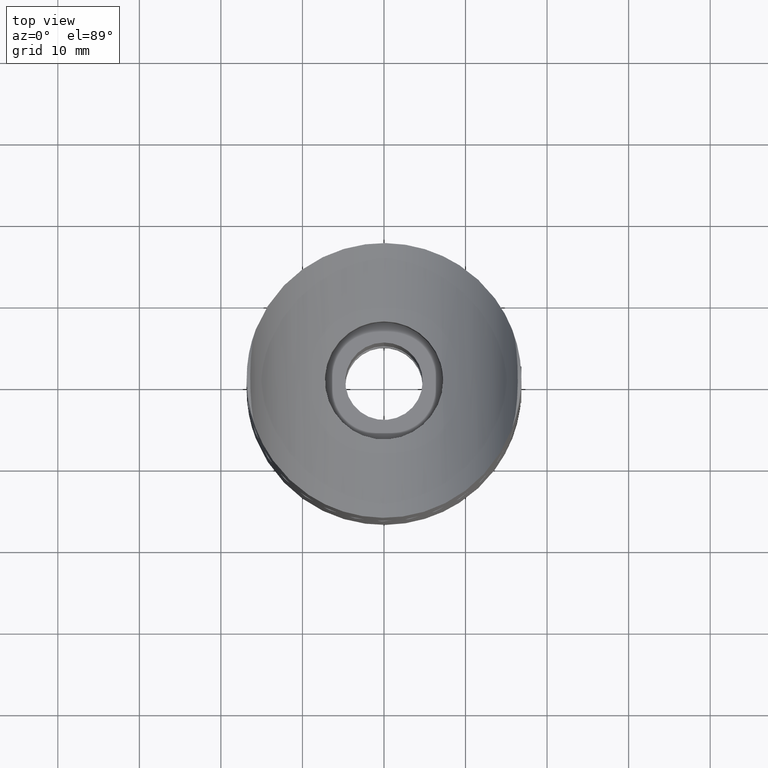
[diagram: clean part render]
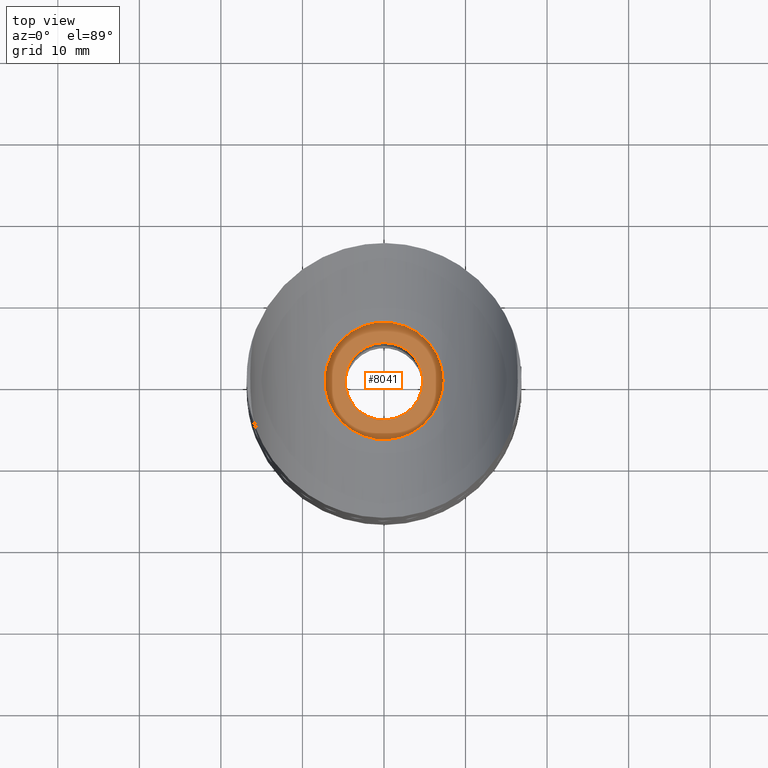
[diagram: same view with one face highlighted and labeled with its STEP entity id]
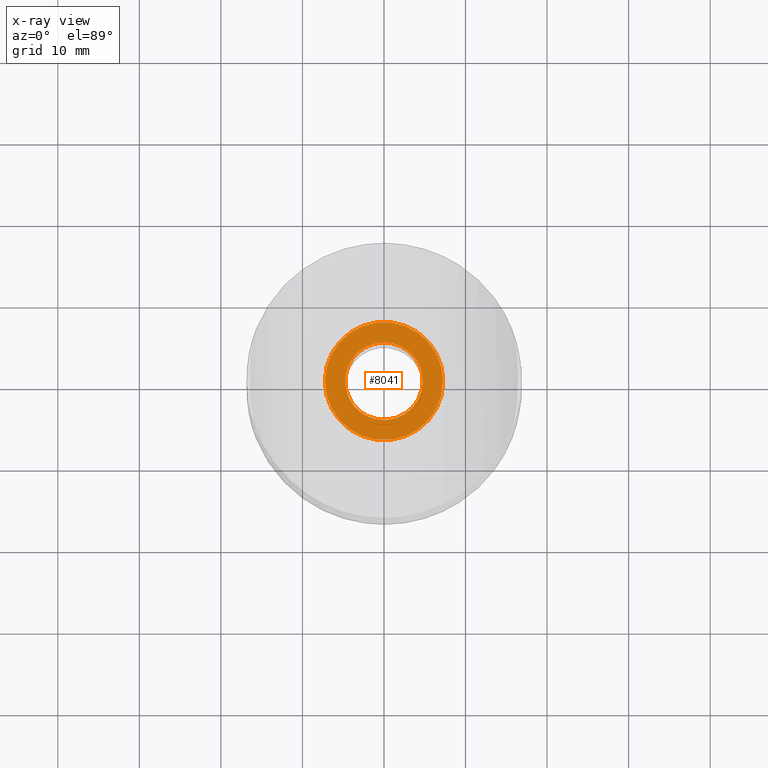
[diagram: x-ray of the same camera — body ghosted, the highlighted face saturated]
A machine part, top view. The second image highlights one B-rep face of the part: STEP entity #8041.
The next image is the same camera in x-ray: the body ghosted, the highlighted face saturated — about 0% of this face is hidden behind the body in this view.
In plain terms, the highlighted planar face has unit normal (0, 0, 1).
Its self-contained STEP definition (entity closure, byte-faithful):
#1192 = CARTESIAN_POINT ( 'NONE',  ( 4.750000000000000000, 0.000000000000000000, 19.50000000000000355 ) ) ;
#1590 = DIRECTION ( 'NONE',  ( 1.000000000000000000, 0.000000000000000000, -0.000000000000000000 ) ) ;
#2810 = EDGE_LOOP ( 'NONE', ( #5595 ) ) ;
#4559 = CARTESIAN_POINT ( 'NONE',  ( 7.250000000000000000, 0.000000000000000000, 19.50000000000000355 ) ) ;
#4768 = VERTEX_POINT ( 'NONE', #4559 ) ;
#5006 = FACE_OUTER_BOUND ( 'NONE', #6915, .T. ) ;
#5595 = ORIENTED_EDGE ( 'NONE', *, *, #12455, .T. ) ;
#5926 = EDGE_CURVE ( 'NONE', #4768, #4768, #10821, .T. ) ;
#6091 = DIRECTION ( 'NONE',  ( 1.000000000000000000, 0.000000000000000000, 0.000000000000000000 ) ) ;
#6849 = DIRECTION ( 'NONE',  ( 1.000000000000000000, 0.000000000000000000, 0.000000000000000000 ) ) ;
#6889 = FACE_BOUND ( 'NONE', #2810, .T. ) ;
#6915 = EDGE_LOOP ( 'NONE', ( #9315 ) ) ;
#7714 = AXIS2_PLACEMENT_3D ( 'NONE', #9314, #9407, #1590 ) ;
#8041 = ADVANCED_FACE ( 'NONE', ( #5006, #6889 ), #13666, .T. ) ;
#9314 = CARTESIAN_POINT ( 'NONE',  ( 0.000000000000000000, 0.000000000000000000, 19.50000000000000355 ) ) ;
#9315 = ORIENTED_EDGE ( 'NONE', *, *, #5926, .T. ) ;
#9407 = DIRECTION ( 'NONE',  ( 0.000000000000000000, 0.000000000000000000, 1.000000000000000000 ) ) ;
#10141 = DIRECTION ( 'NONE',  ( 0.000000000000000000, 0.000000000000000000, 1.000000000000000000 ) ) ;
#10347 = CARTESIAN_POINT ( 'NONE',  ( 0.000000000000000000, 0.000000000000000000, 19.50000000000000355 ) ) ;
#10821 = CIRCLE ( 'NONE', #13548, 7.250000000000000000 ) ;
#12290 = CARTESIAN_POINT ( 'NONE',  ( 0.000000000000000000, 0.000000000000000000, 19.50000000000000355 ) ) ;
#12455 = EDGE_CURVE ( 'NONE', #14244, #14244, #13030, .T. ) ;
#12541 = DIRECTION ( 'NONE',  ( -0.000000000000000000, -0.000000000000000000, -1.000000000000000000 ) ) ;
#12916 = AXIS2_PLACEMENT_3D ( 'NONE', #10347, #12541, #6091 ) ;
#13030 = CIRCLE ( 'NONE', #12916, 4.750000000000000000 ) ;
#13548 = AXIS2_PLACEMENT_3D ( 'NONE', #12290, #10141, #6849 ) ;
#13666 = PLANE ( 'NONE',  #7714 ) ;
#14244 = VERTEX_POINT ( 'NONE', #1192 ) ;